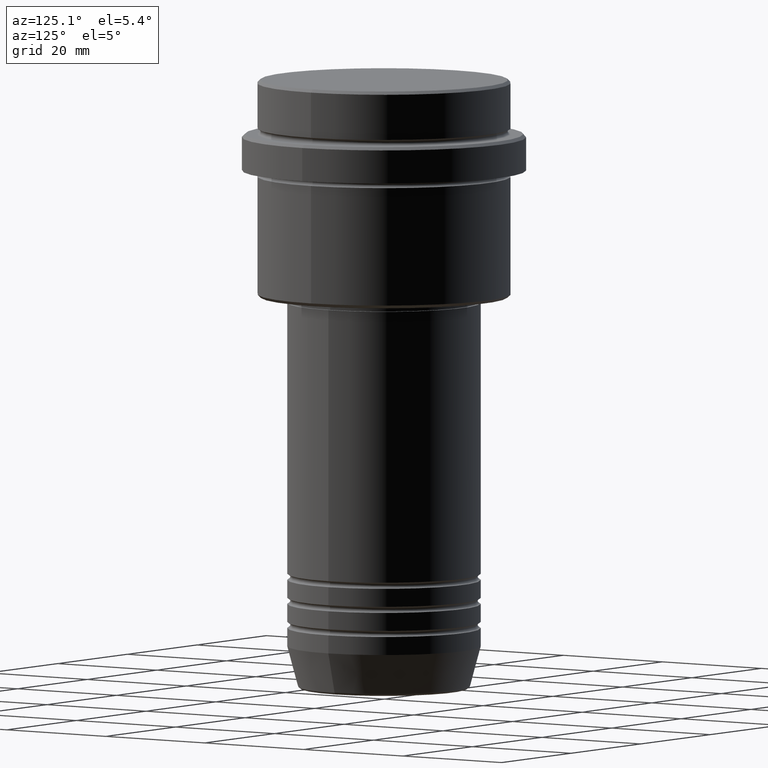
[diagram: clean part render]
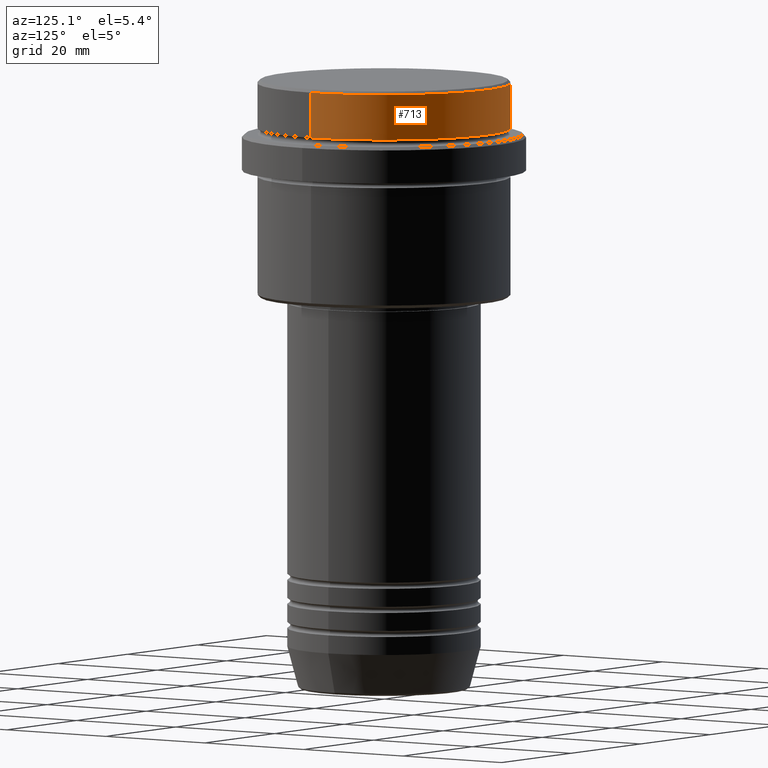
[diagram: same view with one face highlighted and labeled with its STEP entity id]
A machine part, auxiliary view. The second image highlights one B-rep face of the part: STEP entity #713.
In plain terms, the highlighted cylindrical surface (partial cylindrical patch) has radius 21 mm, axis along (-0, -0, 1).
Its self-contained STEP definition (entity closure, byte-faithful):
#2 = EDGE_LOOP ( 'NONE', ( #936, #539, #242, #1075 ) ) ;
#36 = CARTESIAN_POINT ( 'NONE',  ( -21.00000000000000000, 2.571758278209441661E-15, 0.000000000000000000 ) ) ;
#47 = CARTESIAN_POINT ( 'NONE',  ( 21.00000000000000000, 0.000000000000000000, 0.000000000000000000 ) ) ;
#73 = FACE_OUTER_BOUND ( 'NONE', #2, .T. ) ;
#98 = DIRECTION ( 'NONE',  ( 1.000000000000000000, 0.000000000000000000, 0.000000000000000000 ) ) ;
#123 = EDGE_CURVE ( 'NONE', #712, #203, #156, .T. ) ;
#156 = LINE ( 'NONE', #47, #839 ) ;
#161 = EDGE_CURVE ( 'NONE', #170, #759, #341, .T. ) ;
#163 = DIRECTION ( 'NONE',  ( 0.000000000000000000, 0.000000000000000000, -1.000000000000000000 ) ) ;
#170 = VERTEX_POINT ( 'NONE', #1022 ) ;
#203 = VERTEX_POINT ( 'NONE', #1367 ) ;
#242 = ORIENTED_EDGE ( 'NONE', *, *, #508, .T. ) ;
#341 = LINE ( 'NONE', #36, #1313 ) ;
#344 = CIRCLE ( 'NONE', #820, 21.00000000000000000 ) ;
#355 = DIRECTION ( 'NONE',  ( 1.000000000000000000, 0.000000000000000000, 0.000000000000000000 ) ) ;
#360 = DIRECTION ( 'NONE',  ( 1.000000000000000000, 0.000000000000000000, 0.000000000000000000 ) ) ;
#403 = CARTESIAN_POINT ( 'NONE',  ( 21.00000000000000000, 0.000000000000000000, -7.999999999999998224 ) ) ;
#508 = EDGE_CURVE ( 'NONE', #759, #203, #344, .T. ) ;
#531 = CARTESIAN_POINT ( 'NONE',  ( -21.00000000000000000, 2.571758278209441661E-15, -0.5000000000000247580 ) ) ;
#539 = ORIENTED_EDGE ( 'NONE', *, *, #161, .T. ) ;
#579 = DIRECTION ( 'NONE',  ( -0.000000000000000000, -0.000000000000000000, 1.000000000000000000 ) ) ;
#634 = CARTESIAN_POINT ( 'NONE',  ( 0.000000000000000000, 0.000000000000000000, 0.000000000000000000 ) ) ;
#702 = AXIS2_PLACEMENT_3D ( 'NONE', #634, #851, #98 ) ;
#712 = VERTEX_POINT ( 'NONE', #403 ) ;
#713 = ADVANCED_FACE ( 'NONE', ( #73 ), #1392, .T. ) ;
#759 = VERTEX_POINT ( 'NONE', #531 ) ;
#800 = CIRCLE ( 'NONE', #941, 21.00000000000000000 ) ;
#820 = AXIS2_PLACEMENT_3D ( 'NONE', #1166, #163, #355 ) ;
#839 = VECTOR ( 'NONE', #579, 1000.000000000000000 ) ;
#851 = DIRECTION ( 'NONE',  ( -0.000000000000000000, -0.000000000000000000, 1.000000000000000000 ) ) ;
#936 = ORIENTED_EDGE ( 'NONE', *, *, #1391, .T. ) ;
#941 = AXIS2_PLACEMENT_3D ( 'NONE', #1037, #1225, #360 ) ;
#1022 = CARTESIAN_POINT ( 'NONE',  ( -21.00000000000000000, 2.571758278209441661E-15, -7.999999999999998224 ) ) ;
#1037 = CARTESIAN_POINT ( 'NONE',  ( 0.000000000000000000, 0.000000000000000000, -7.999999999999998224 ) ) ;
#1075 = ORIENTED_EDGE ( 'NONE', *, *, #123, .F. ) ;
#1126 = DIRECTION ( 'NONE',  ( -0.000000000000000000, -0.000000000000000000, 1.000000000000000000 ) ) ;
#1166 = CARTESIAN_POINT ( 'NONE',  ( 0.000000000000000000, 0.000000000000000000, -0.5000000000000247580 ) ) ;
#1225 = DIRECTION ( 'NONE',  ( -0.000000000000000000, -0.000000000000000000, 1.000000000000000000 ) ) ;
#1313 = VECTOR ( 'NONE', #1126, 1000.000000000000000 ) ;
#1367 = CARTESIAN_POINT ( 'NONE',  ( 21.00000000000000000, 0.000000000000000000, -0.5000000000000247580 ) ) ;
#1391 = EDGE_CURVE ( 'NONE', #712, #170, #800, .T. ) ;
#1392 = CYLINDRICAL_SURFACE ( 'NONE', #702, 21.00000000000000000 ) ;